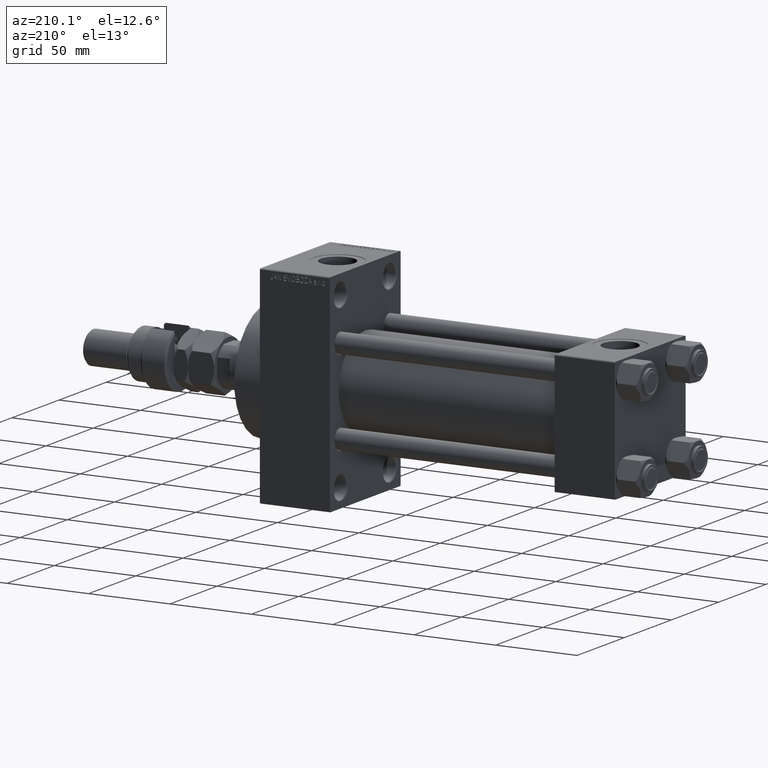
[diagram: clean part render]
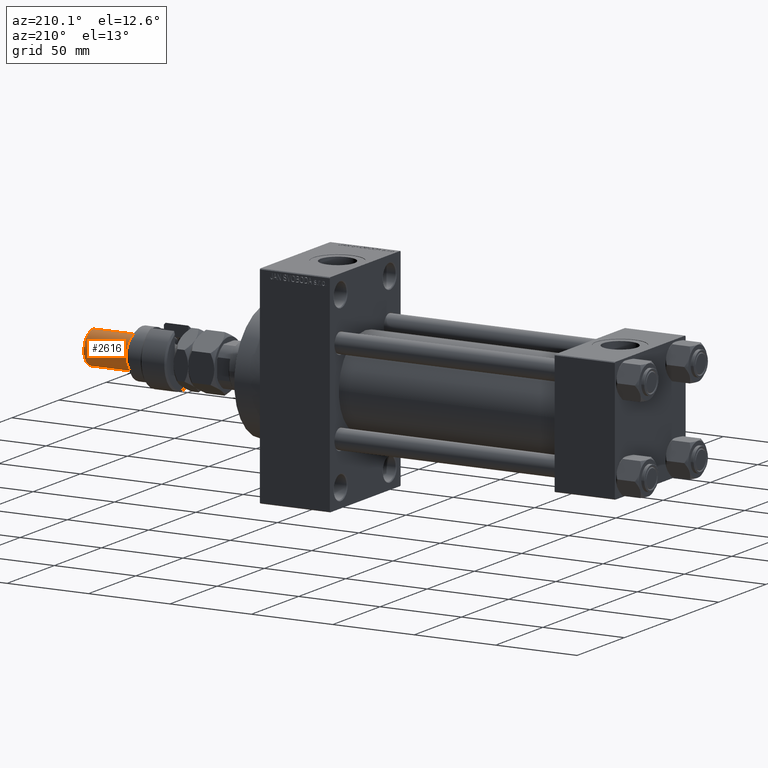
[diagram: same view with one face highlighted and labeled with its STEP entity id]
A machine part, auxiliary view. The second image highlights one B-rep face of the part: STEP entity #2616.
In plain terms, the highlighted cylindrical surface (edge-blend (fillet) strip) has radius 10 mm, axis along (-1, -0, 0).
Its self-contained STEP definition (entity closure, byte-faithful):
#227 = CARTESIAN_POINT ( 'NONE',  ( -10.00000000000000000, 0.000000000000000000, 29.00000000000000711 ) ) ;
#964 = EDGE_CURVE ( 'NONE', #13350, #8678, #29301, .T. ) ;
#1102 = DIRECTION ( 'NONE',  ( -0.000000000000000000, -0.000000000000000000, -1.000000000000000000 ) ) ;
#2616 = ADVANCED_FACE ( 'NONE', ( #42797 ), #43803, .T. ) ;
#8150 = LINE ( 'NONE', #42964, #49723 ) ;
#8677 = CARTESIAN_POINT ( 'NONE',  ( 10.00000000000000000, 1.224646799147353256E-15, 29.00000000000000711 ) ) ;
#8678 = VERTEX_POINT ( 'NONE', #33371 ) ;
#8886 = DIRECTION ( 'NONE',  ( 1.000000000000000000, 0.000000000000000000, 0.000000000000000000 ) ) ;
#10547 = AXIS2_PLACEMENT_3D ( 'NONE', #15991, #47500, #8886 ) ;
#10655 = AXIS2_PLACEMENT_3D ( 'NONE', #14908, #41369, #49715 ) ;
#11128 = CARTESIAN_POINT ( 'NONE',  ( 10.00000000000000000, 1.224646799147353256E-15, 56.00000000000000711 ) ) ;
#12295 = CARTESIAN_POINT ( 'NONE',  ( 0.000000000000000000, 0.000000000000000000, 56.00000000000000711 ) ) ;
#13350 = VERTEX_POINT ( 'NONE', #17604 ) ;
#14908 = CARTESIAN_POINT ( 'NONE',  ( 0.000000000000000000, 0.000000000000000000, 54.99999999999998579 ) ) ;
#15991 = CARTESIAN_POINT ( 'NONE',  ( 0.000000000000000000, 0.000000000000000000, 29.00000000000000711 ) ) ;
#16302 = ORIENTED_EDGE ( 'NONE', *, *, #32169, .F. ) ;
#17604 = CARTESIAN_POINT ( 'NONE',  ( -10.00000000000000000, 0.000000000000000000, 54.99999999999998579 ) ) ;
#17985 = VERTEX_POINT ( 'NONE', #227 ) ;
#20208 = EDGE_LOOP ( 'NONE', ( #48047, #35997, #29294, #16302 ) ) ;
#22454 = EDGE_CURVE ( 'NONE', #44149, #17985, #22663, .T. ) ;
#22663 = CIRCLE ( 'NONE', #10547, 10.00000000000000000 ) ;
#23628 = DIRECTION ( 'NONE',  ( -0.000000000000000000, -0.000000000000000000, -1.000000000000000000 ) ) ;
#24588 = VECTOR ( 'NONE', #49734, 1000.000000000000000 ) ;
#27797 = DIRECTION ( 'NONE',  ( -1.000000000000000000, 0.000000000000000000, 0.000000000000000000 ) ) ;
#29294 = ORIENTED_EDGE ( 'NONE', *, *, #22454, .T. ) ;
#29301 = CIRCLE ( 'NONE', #10655, 10.00000000000000000 ) ;
#29818 = EDGE_CURVE ( 'NONE', #8678, #44149, #48746, .T. ) ;
#32169 = EDGE_CURVE ( 'NONE', #13350, #17985, #8150, .T. ) ;
#33371 = CARTESIAN_POINT ( 'NONE',  ( 10.00000000000000000, 1.224646799147353256E-15, 54.99999999999998579 ) ) ;
#35997 = ORIENTED_EDGE ( 'NONE', *, *, #29818, .T. ) ;
#41369 = DIRECTION ( 'NONE',  ( 0.000000000000000000, 0.000000000000000000, -1.000000000000000000 ) ) ;
#42797 = FACE_OUTER_BOUND ( 'NONE', #20208, .T. ) ;
#42964 = CARTESIAN_POINT ( 'NONE',  ( -10.00000000000000000, 0.000000000000000000, 56.00000000000000711 ) ) ;
#43803 = CYLINDRICAL_SURFACE ( 'NONE', #44753, 10.00000000000000000 ) ;
#44149 = VERTEX_POINT ( 'NONE', #8677 ) ;
#44753 = AXIS2_PLACEMENT_3D ( 'NONE', #12295, #1102, #27797 ) ;
#47500 = DIRECTION ( 'NONE',  ( -0.000000000000000000, -0.000000000000000000, 1.000000000000000000 ) ) ;
#48047 = ORIENTED_EDGE ( 'NONE', *, *, #964, .T. ) ;
#48746 = LINE ( 'NONE', #11128, #24588 ) ;
#49715 = DIRECTION ( 'NONE',  ( 1.000000000000000000, 0.000000000000000000, 0.000000000000000000 ) ) ;
#49723 = VECTOR ( 'NONE', #23628, 1000.000000000000000 ) ;
#49734 = DIRECTION ( 'NONE',  ( -0.000000000000000000, -0.000000000000000000, -1.000000000000000000 ) ) ;